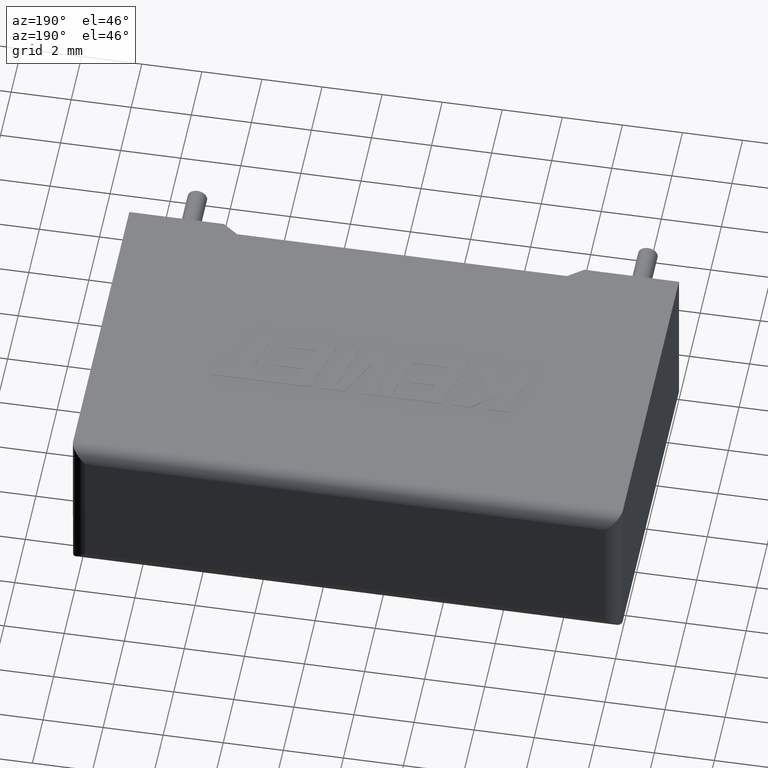
[diagram: clean part render]
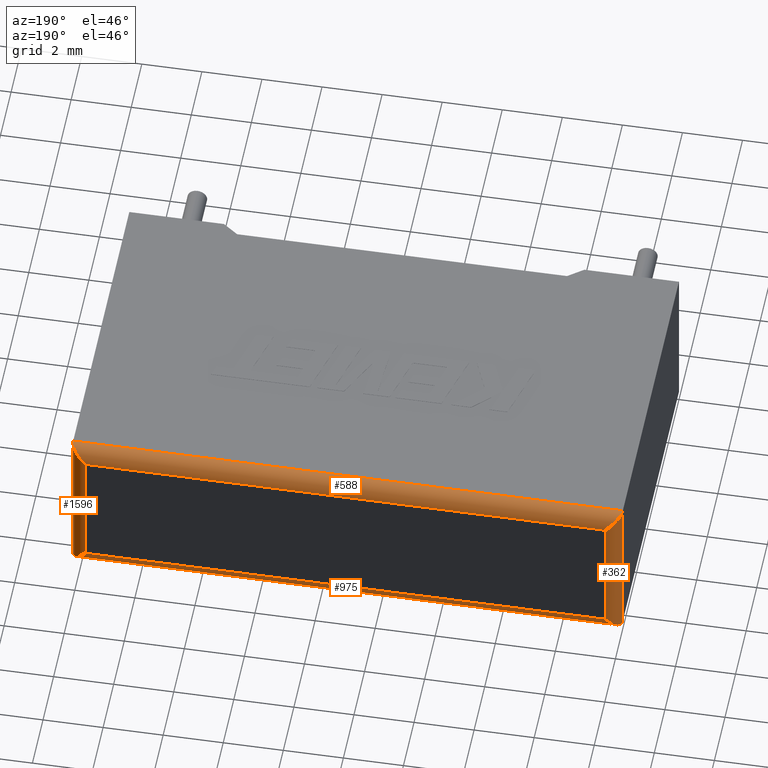
[diagram: same view with one multi-face feature highlighted, each face labeled with its STEP entity id]
A machine part, auxiliary view. The highlighted faces form ONE feature: a constant-radius fillet chain: 4 tangent blend faces with common blend radius 0.5 mm. The faces share edges in the B-rep.
Their STEP definitions:
[1] entity #588 (Cylinder):
#88 = EDGE_LOOP ( 'NONE', ( #2195, #1679, #1518, #2441 ) ) ;
#155 = CARTESIAN_POINT ( 'NONE',  ( 0.5000000000000000000, 11.09999999999999964, 4.699999999999999289 ) ) ;
#165 = CARTESIAN_POINT ( 'NONE',  ( 0.5000000000000000000, 11.09999999999999964, 4.699999999999999289 ) ) ;
#184 = VERTEX_POINT ( 'NONE', #2795 ) ;
#366 = EDGE_CURVE ( 'NONE', #3020, #2606, #1364, .T. ) ;
#385 = DIRECTION ( 'NONE',  ( -1.000000000000000000, 0.000000000000000000, 0.000000000000000000 ) ) ;
#588 = ADVANCED_FACE ( 'NONE', ( #1303 ), #1078, .T. ) ;
#606 = DIRECTION ( 'NONE',  ( 0.000000000000000000, 0.000000000000000000, 1.000000000000000000 ) ) ;
#627 = LINE ( 'NONE', #686, #1016 ) ;
#636 =( BOUNDED_CURVE ( )  B_SPLINE_CURVE ( 3, ( #1380, #1122, #1617, #1106 ),
 .UNSPECIFIED., .F., .T. ) 
 B_SPLINE_CURVE_WITH_KNOTS ( ( 4, 4 ),
 ( 3.141592653589793116, 4.712388980384689674 ),
 .UNSPECIFIED. ) 
 CURVE ( )  GEOMETRIC_REPRESENTATION_ITEM ( )  RATIONAL_B_SPLINE_CURVE ( ( 1.000000000000000000, 0.8047378541243649375, 0.8047378541243649375, 1.000000000000000000 ) ) 
 REPRESENTATION_ITEM ( '' )  );
#652 = EDGE_CURVE ( 'NONE', #184, #2022, #636, .T. ) ;
#686 = CARTESIAN_POINT ( 'NONE',  ( 0.000000000000000000, 11.09999999999999964, 4.699999999999999289 ) ) ;
#844 = DIRECTION ( 'NONE',  ( -1.000000000000000000, 0.000000000000000000, 0.000000000000000000 ) ) ;
#892 = CARTESIAN_POINT ( 'NONE',  ( 0.000000000000000000, 10.59999999999999964, 5.200000000000000178 ) ) ;
#1016 = VECTOR ( 'NONE', #2055, 1000.000000000000000 ) ;
#1078 = CYLINDRICAL_SURFACE ( 'NONE', #1809, 0.5000000000000004441 ) ;
#1106 = CARTESIAN_POINT ( 'NONE',  ( 17.80000000000000071, 11.09999999999999964, 4.699999999999999289 ) ) ;
#1122 = CARTESIAN_POINT ( 'NONE',  ( 18.30000000000000071, 10.89289321881345174, 5.199999999999998401 ) ) ;
#1171 = CARTESIAN_POINT ( 'NONE',  ( 0.000000000000000000, 10.59999999999999964, 5.200000000000000178 ) ) ;
#1303 = FACE_OUTER_BOUND ( 'NONE', #88, .T. ) ;
#1364 =( BOUNDED_CURVE ( )  B_SPLINE_CURVE ( 3, ( #892, #1832, #2755, #155 ),
 .UNSPECIFIED., .F., .T. ) 
 B_SPLINE_CURVE_WITH_KNOTS ( ( 4, 4 ),
 ( 0.000000000000000000, 1.570796326794896558 ),
 .UNSPECIFIED. ) 
 CURVE ( )  GEOMETRIC_REPRESENTATION_ITEM ( )  RATIONAL_B_SPLINE_CURVE ( ( 1.000000000000000000, 0.8047378541243649375, 0.8047378541243649375, 1.000000000000000000 ) ) 
 REPRESENTATION_ITEM ( '' )  );
#1380 = CARTESIAN_POINT ( 'NONE',  ( 18.30000000000000071, 10.59999999999999964, 5.200000000000000178 ) ) ;
#1518 = ORIENTED_EDGE ( 'NONE', *, *, #366, .F. ) ;
#1614 = VECTOR ( 'NONE', #385, 1000.000000000000000 ) ;
#1617 = CARTESIAN_POINT ( 'NONE',  ( 18.09289321881345103, 11.10000000000000142, 4.992893218813451384 ) ) ;
#1634 = EDGE_CURVE ( 'NONE', #2606, #2022, #627, .T. ) ;
#1679 = ORIENTED_EDGE ( 'NONE', *, *, #1634, .F. ) ;
#1809 = AXIS2_PLACEMENT_3D ( 'NONE', #2188, #844, #606 ) ;
#1832 = CARTESIAN_POINT ( 'NONE',  ( 1.084202172485504434E-16, 10.89289321881345174, 5.199999999999998401 ) ) ;
#2022 = VERTEX_POINT ( 'NONE', #2766 ) ;
#2055 = DIRECTION ( 'NONE',  ( 1.000000000000000000, -0.000000000000000000, -0.000000000000000000 ) ) ;
#2188 = CARTESIAN_POINT ( 'NONE',  ( 0.000000000000000000, 10.59999999999999964, 4.699999999999999289 ) ) ;
#2195 = ORIENTED_EDGE ( 'NONE', *, *, #652, .T. ) ;
#2279 = LINE ( 'NONE', #2731, #1614 ) ;
#2326 = EDGE_CURVE ( 'NONE', #184, #3020, #2279, .T. ) ;
#2441 = ORIENTED_EDGE ( 'NONE', *, *, #2326, .F. ) ;
#2606 = VERTEX_POINT ( 'NONE', #165 ) ;
#2731 = CARTESIAN_POINT ( 'NONE',  ( 0.000000000000000000, 10.59999999999999964, 5.200000000000000178 ) ) ;
#2755 = CARTESIAN_POINT ( 'NONE',  ( 0.2071067811865475727, 11.10000000000000142, 4.992893218813451384 ) ) ;
#2766 = CARTESIAN_POINT ( 'NONE',  ( 17.80000000000000071, 11.09999999999999964, 4.699999999999999289 ) ) ;
#2795 = CARTESIAN_POINT ( 'NONE',  ( 18.30000000000000071, 10.59999999999999964, 5.200000000000000178 ) ) ;
#3020 = VERTEX_POINT ( 'NONE', #1171 ) ;
[2] entity #362 (Cylinder):
#20 = AXIS2_PLACEMENT_3D ( 'NONE', #1335, #439, #2053 ) ;
#47 = EDGE_LOOP ( 'NONE', ( #2423, #1143, #1137, #181 ) ) ;
#155 = CARTESIAN_POINT ( 'NONE',  ( 0.5000000000000000000, 11.09999999999999964, 4.699999999999999289 ) ) ;
#165 = CARTESIAN_POINT ( 'NONE',  ( 0.5000000000000000000, 11.09999999999999964, 4.699999999999999289 ) ) ;
#181 = ORIENTED_EDGE ( 'NONE', *, *, #992, .F. ) ;
#237 = CARTESIAN_POINT ( 'NONE',  ( 1.442892915397364602E-16, 10.89289321881345174, 5.779701605339383077E-16 ) ) ;
#362 = ADVANCED_FACE ( 'NONE', ( #2507 ), #2540, .T. ) ;
#366 = EDGE_CURVE ( 'NONE', #3020, #2606, #1364, .T. ) ;
#411 = VERTEX_POINT ( 'NONE', #1185 ) ;
#439 = DIRECTION ( 'NONE',  ( 0.000000000000000000, 0.000000000000000000, -1.000000000000000000 ) ) ;
#484 = EDGE_CURVE ( 'NONE', #411, #2606, #2894, .T. ) ;
#491 = DIRECTION ( 'NONE',  ( -0.000000000000000000, -0.000000000000000000, 1.000000000000000000 ) ) ;
#574 = DIRECTION ( 'NONE',  ( 0.000000000000000000, 0.000000000000000000, -1.000000000000000000 ) ) ;
#646 = CARTESIAN_POINT ( 'NONE',  ( 0.2071067811865475172, 11.09999999999999609, 0.2071067811865479058 ) ) ;
#720 = VECTOR ( 'NONE', #574, 1000.000000000000000 ) ;
#781 = CARTESIAN_POINT ( 'NONE',  ( 0.5000000000000000000, 11.09999999999999964, 5.200000000000000178 ) ) ;
#803 = CARTESIAN_POINT ( 'NONE',  ( 0.000000000000000000, 10.59999999999999964, 5.200000000000000178 ) ) ;
#892 = CARTESIAN_POINT ( 'NONE',  ( 0.000000000000000000, 10.59999999999999964, 5.200000000000000178 ) ) ;
#992 = EDGE_CURVE ( 'NONE', #3020, #1505, #1038, .T. ) ;
#1038 = LINE ( 'NONE', #803, #720 ) ;
#1137 = ORIENTED_EDGE ( 'NONE', *, *, #1397, .T. ) ;
#1143 = ORIENTED_EDGE ( 'NONE', *, *, #484, .F. ) ;
#1171 = CARTESIAN_POINT ( 'NONE',  ( 0.000000000000000000, 10.59999999999999964, 5.200000000000000178 ) ) ;
#1185 = CARTESIAN_POINT ( 'NONE',  ( 0.5000000000000000000, 11.09999999999999964, 0.5000000000000004441 ) ) ;
#1335 = CARTESIAN_POINT ( 'NONE',  ( 0.5000000000000000000, 10.59999999999999964, 5.200000000000000178 ) ) ;
#1364 =( BOUNDED_CURVE ( )  B_SPLINE_CURVE ( 3, ( #892, #1832, #2755, #155 ),
 .UNSPECIFIED., .F., .T. ) 
 B_SPLINE_CURVE_WITH_KNOTS ( ( 4, 4 ),
 ( 0.000000000000000000, 1.570796326794896558 ),
 .UNSPECIFIED. ) 
 CURVE ( )  GEOMETRIC_REPRESENTATION_ITEM ( )  RATIONAL_B_SPLINE_CURVE ( ( 1.000000000000000000, 0.8047378541243649375, 0.8047378541243649375, 1.000000000000000000 ) ) 
 REPRESENTATION_ITEM ( '' )  );
#1397 = EDGE_CURVE ( 'NONE', #411, #1505, #2325, .T. ) ;
#1505 = VERTEX_POINT ( 'NONE', #2414 ) ;
#1832 = CARTESIAN_POINT ( 'NONE',  ( 1.084202172485504434E-16, 10.89289321881345174, 5.199999999999998401 ) ) ;
#1947 = VECTOR ( 'NONE', #491, 1000.000000000000000 ) ;
#2053 = DIRECTION ( 'NONE',  ( -1.000000000000000000, 0.000000000000000000, 0.000000000000000000 ) ) ;
#2083 = CARTESIAN_POINT ( 'NONE',  ( 0.000000000000000000, 10.59999999999999964, 0.000000000000000000 ) ) ;
#2325 =( BOUNDED_CURVE ( )  B_SPLINE_CURVE ( 3, ( #3046, #646, #237, #2083 ),
 .UNSPECIFIED., .F., .T. ) 
 B_SPLINE_CURVE_WITH_KNOTS ( ( 4, 4 ),
 ( 1.570796326794896780, 3.141592653589793116 ),
 .UNSPECIFIED. ) 
 CURVE ( )  GEOMETRIC_REPRESENTATION_ITEM ( )  RATIONAL_B_SPLINE_CURVE ( ( 1.000000000000000000, 0.8047378541243650485, 0.8047378541243650485, 1.000000000000000000 ) ) 
 REPRESENTATION_ITEM ( '' )  );
#2414 = CARTESIAN_POINT ( 'NONE',  ( 0.000000000000000000, 10.59999999999999964, 0.000000000000000000 ) ) ;
#2423 = ORIENTED_EDGE ( 'NONE', *, *, #366, .T. ) ;
#2507 = FACE_OUTER_BOUND ( 'NONE', #47, .T. ) ;
#2540 = CYLINDRICAL_SURFACE ( 'NONE', #20, 0.5000000000000000000 ) ;
#2606 = VERTEX_POINT ( 'NONE', #165 ) ;
#2755 = CARTESIAN_POINT ( 'NONE',  ( 0.2071067811865475727, 11.10000000000000142, 4.992893218813451384 ) ) ;
#2894 = LINE ( 'NONE', #781, #1947 ) ;
#3020 = VERTEX_POINT ( 'NONE', #1171 ) ;
#3046 = CARTESIAN_POINT ( 'NONE',  ( 0.5000000000000000000, 11.09999999999999964, 0.5000000000000004441 ) ) ;
[3] entity #975 (Cylinder):
#93 = EDGE_CURVE ( 'NONE', #2993, #411, #2074, .T. ) ;
#94 = EDGE_LOOP ( 'NONE', ( #2754, #2851, #2730, #1317 ) ) ;
#148 = CARTESIAN_POINT ( 'NONE',  ( 18.30000000000000071, 10.59999999999999964, 0.000000000000000000 ) ) ;
#237 = CARTESIAN_POINT ( 'NONE',  ( 1.442892915397364602E-16, 10.89289321881345174, 5.779701605339383077E-16 ) ) ;
#238 = CARTESIAN_POINT ( 'NONE',  ( 18.30000000000000071, 10.59999999999999964, 0.000000000000000000 ) ) ;
#297 = FACE_OUTER_BOUND ( 'NONE', #94, .T. ) ;
#411 = VERTEX_POINT ( 'NONE', #1185 ) ;
#425 = CARTESIAN_POINT ( 'NONE',  ( 18.30000000000000071, 10.59999999999999964, 0.000000000000000000 ) ) ;
#497 = EDGE_CURVE ( 'NONE', #2993, #745, #1269, .T. ) ;
#544 = DIRECTION ( 'NONE',  ( 0.000000000000000000, 0.000000000000000000, -1.000000000000000000 ) ) ;
#549 = CARTESIAN_POINT ( 'NONE',  ( 18.09289321881345103, 11.10000000000000142, 0.2071067811865480723 ) ) ;
#646 = CARTESIAN_POINT ( 'NONE',  ( 0.2071067811865475172, 11.09999999999999609, 0.2071067811865479058 ) ) ;
#681 = VECTOR ( 'NONE', #2910, 1000.000000000000000 ) ;
#745 = VERTEX_POINT ( 'NONE', #425 ) ;
#975 = ADVANCED_FACE ( 'NONE', ( #297 ), #2097, .T. ) ;
#1140 = DIRECTION ( 'NONE',  ( -1.000000000000000000, 0.000000000000000000, 0.000000000000000000 ) ) ;
#1185 = CARTESIAN_POINT ( 'NONE',  ( 0.5000000000000000000, 11.09999999999999964, 0.5000000000000004441 ) ) ;
#1269 =( BOUNDED_CURVE ( )  B_SPLINE_CURVE ( 3, ( #2645, #549, #2339, #238 ),
 .UNSPECIFIED., .F., .T. ) 
 B_SPLINE_CURVE_WITH_KNOTS ( ( 4, 4 ),
 ( 4.712388980384689674, 6.283185307179586232 ),
 .UNSPECIFIED. ) 
 CURVE ( )  GEOMETRIC_REPRESENTATION_ITEM ( )  RATIONAL_B_SPLINE_CURVE ( ( 1.000000000000000000, 0.8047378541243649375, 0.8047378541243649375, 1.000000000000000000 ) ) 
 REPRESENTATION_ITEM ( '' )  );
#1289 = DIRECTION ( 'NONE',  ( 1.000000000000000000, 0.000000000000000000, 0.000000000000000000 ) ) ;
#1317 = ORIENTED_EDGE ( 'NONE', *, *, #93, .F. ) ;
#1384 = CARTESIAN_POINT ( 'NONE',  ( 0.000000000000000000, 11.09999999999999964, 0.5000000000000004441 ) ) ;
#1397 = EDGE_CURVE ( 'NONE', #411, #1505, #2325, .T. ) ;
#1505 = VERTEX_POINT ( 'NONE', #2414 ) ;
#1748 = CARTESIAN_POINT ( 'NONE',  ( 0.000000000000000000, 10.59999999999999964, 0.5000000000000004441 ) ) ;
#1897 = VECTOR ( 'NONE', #1140, 1000.000000000000000 ) ;
#2046 = CARTESIAN_POINT ( 'NONE',  ( 17.80000000000000071, 11.09999999999999964, 0.5000000000000004441 ) ) ;
#2074 = LINE ( 'NONE', #1384, #1897 ) ;
#2083 = CARTESIAN_POINT ( 'NONE',  ( 0.000000000000000000, 10.59999999999999964, 0.000000000000000000 ) ) ;
#2097 = CYLINDRICAL_SURFACE ( 'NONE', #2664, 0.5000000000000000000 ) ;
#2254 = LINE ( 'NONE', #148, #681 ) ;
#2325 =( BOUNDED_CURVE ( )  B_SPLINE_CURVE ( 3, ( #3046, #646, #237, #2083 ),
 .UNSPECIFIED., .F., .T. ) 
 B_SPLINE_CURVE_WITH_KNOTS ( ( 4, 4 ),
 ( 1.570796326794896780, 3.141592653589793116 ),
 .UNSPECIFIED. ) 
 CURVE ( )  GEOMETRIC_REPRESENTATION_ITEM ( )  RATIONAL_B_SPLINE_CURVE ( ( 1.000000000000000000, 0.8047378541243650485, 0.8047378541243650485, 1.000000000000000000 ) ) 
 REPRESENTATION_ITEM ( '' )  );
#2339 = CARTESIAN_POINT ( 'NONE',  ( 18.30000000000000071, 10.89289321881345174, 5.421010862427522170E-16 ) ) ;
#2414 = CARTESIAN_POINT ( 'NONE',  ( 0.000000000000000000, 10.59999999999999964, 0.000000000000000000 ) ) ;
#2645 = CARTESIAN_POINT ( 'NONE',  ( 17.80000000000000071, 11.09999999999999964, 0.5000000000000004441 ) ) ;
#2664 = AXIS2_PLACEMENT_3D ( 'NONE', #1748, #1289, #544 ) ;
#2730 = ORIENTED_EDGE ( 'NONE', *, *, #1397, .F. ) ;
#2754 = ORIENTED_EDGE ( 'NONE', *, *, #497, .T. ) ;
#2851 = ORIENTED_EDGE ( 'NONE', *, *, #2905, .F. ) ;
#2905 = EDGE_CURVE ( 'NONE', #1505, #745, #2254, .T. ) ;
#2910 = DIRECTION ( 'NONE',  ( 1.000000000000000000, -0.000000000000000000, -0.000000000000000000 ) ) ;
#2993 = VERTEX_POINT ( 'NONE', #2046 ) ;
#3046 = CARTESIAN_POINT ( 'NONE',  ( 0.5000000000000000000, 11.09999999999999964, 0.5000000000000004441 ) ) ;
[4] entity #1596 (Cylinder):
#82 = CARTESIAN_POINT ( 'NONE',  ( 17.80000000000000071, 10.59999999999999964, 5.200000000000000178 ) ) ;
#92 = FACE_OUTER_BOUND ( 'NONE', #1751, .T. ) ;
#116 = VECTOR ( 'NONE', #2579, 1000.000000000000000 ) ;
#184 = VERTEX_POINT ( 'NONE', #2795 ) ;
#238 = CARTESIAN_POINT ( 'NONE',  ( 18.30000000000000071, 10.59999999999999964, 0.000000000000000000 ) ) ;
#336 = DIRECTION ( 'NONE',  ( 0.000000000000000000, 0.000000000000000000, -1.000000000000000000 ) ) ;
#425 = CARTESIAN_POINT ( 'NONE',  ( 18.30000000000000071, 10.59999999999999964, 0.000000000000000000 ) ) ;
#497 = EDGE_CURVE ( 'NONE', #2993, #745, #1269, .T. ) ;
#516 = AXIS2_PLACEMENT_3D ( 'NONE', #82, #336, #1055 ) ;
#549 = CARTESIAN_POINT ( 'NONE',  ( 18.09289321881345103, 11.10000000000000142, 0.2071067811865480723 ) ) ;
#553 = ORIENTED_EDGE ( 'NONE', *, *, #1826, .F. ) ;
#595 = CYLINDRICAL_SURFACE ( 'NONE', #516, 0.5000000000000004441 ) ;
#636 =( BOUNDED_CURVE ( )  B_SPLINE_CURVE ( 3, ( #1380, #1122, #1617, #1106 ),
 .UNSPECIFIED., .F., .T. ) 
 B_SPLINE_CURVE_WITH_KNOTS ( ( 4, 4 ),
 ( 3.141592653589793116, 4.712388980384689674 ),
 .UNSPECIFIED. ) 
 CURVE ( )  GEOMETRIC_REPRESENTATION_ITEM ( )  RATIONAL_B_SPLINE_CURVE ( ( 1.000000000000000000, 0.8047378541243649375, 0.8047378541243649375, 1.000000000000000000 ) ) 
 REPRESENTATION_ITEM ( '' )  );
#652 = EDGE_CURVE ( 'NONE', #184, #2022, #636, .T. ) ;
#695 = ORIENTED_EDGE ( 'NONE', *, *, #652, .F. ) ;
#713 = CARTESIAN_POINT ( 'NONE',  ( 17.80000000000000071, 11.09999999999999964, 5.200000000000000178 ) ) ;
#745 = VERTEX_POINT ( 'NONE', #425 ) ;
#1055 = DIRECTION ( 'NONE',  ( -1.000000000000000000, 0.000000000000000000, 0.000000000000000000 ) ) ;
#1106 = CARTESIAN_POINT ( 'NONE',  ( 17.80000000000000071, 11.09999999999999964, 4.699999999999999289 ) ) ;
#1122 = CARTESIAN_POINT ( 'NONE',  ( 18.30000000000000071, 10.89289321881345174, 5.199999999999998401 ) ) ;
#1191 = EDGE_CURVE ( 'NONE', #745, #184, #2941, .T. ) ;
#1242 = LINE ( 'NONE', #713, #116 ) ;
#1259 = VECTOR ( 'NONE', #2437, 1000.000000000000000 ) ;
#1269 =( BOUNDED_CURVE ( )  B_SPLINE_CURVE ( 3, ( #2645, #549, #2339, #238 ),
 .UNSPECIFIED., .F., .T. ) 
 B_SPLINE_CURVE_WITH_KNOTS ( ( 4, 4 ),
 ( 4.712388980384689674, 6.283185307179586232 ),
 .UNSPECIFIED. ) 
 CURVE ( )  GEOMETRIC_REPRESENTATION_ITEM ( )  RATIONAL_B_SPLINE_CURVE ( ( 1.000000000000000000, 0.8047378541243649375, 0.8047378541243649375, 1.000000000000000000 ) ) 
 REPRESENTATION_ITEM ( '' )  );
#1380 = CARTESIAN_POINT ( 'NONE',  ( 18.30000000000000071, 10.59999999999999964, 5.200000000000000178 ) ) ;
#1596 = ADVANCED_FACE ( 'NONE', ( #92 ), #595, .T. ) ;
#1617 = CARTESIAN_POINT ( 'NONE',  ( 18.09289321881345103, 11.10000000000000142, 4.992893218813451384 ) ) ;
#1751 = EDGE_LOOP ( 'NONE', ( #2123, #553, #695, #3044 ) ) ;
#1826 = EDGE_CURVE ( 'NONE', #2022, #2993, #1242, .T. ) ;
#2022 = VERTEX_POINT ( 'NONE', #2766 ) ;
#2046 = CARTESIAN_POINT ( 'NONE',  ( 17.80000000000000071, 11.09999999999999964, 0.5000000000000004441 ) ) ;
#2123 = ORIENTED_EDGE ( 'NONE', *, *, #497, .F. ) ;
#2339 = CARTESIAN_POINT ( 'NONE',  ( 18.30000000000000071, 10.89289321881345174, 5.421010862427522170E-16 ) ) ;
#2437 = DIRECTION ( 'NONE',  ( -0.000000000000000000, -0.000000000000000000, 1.000000000000000000 ) ) ;
#2450 = CARTESIAN_POINT ( 'NONE',  ( 18.30000000000000071, 10.59999999999999964, 5.200000000000000178 ) ) ;
#2579 = DIRECTION ( 'NONE',  ( 0.000000000000000000, 0.000000000000000000, -1.000000000000000000 ) ) ;
#2645 = CARTESIAN_POINT ( 'NONE',  ( 17.80000000000000071, 11.09999999999999964, 0.5000000000000004441 ) ) ;
#2766 = CARTESIAN_POINT ( 'NONE',  ( 17.80000000000000071, 11.09999999999999964, 4.699999999999999289 ) ) ;
#2795 = CARTESIAN_POINT ( 'NONE',  ( 18.30000000000000071, 10.59999999999999964, 5.200000000000000178 ) ) ;
#2941 = LINE ( 'NONE', #2450, #1259 ) ;
#2993 = VERTEX_POINT ( 'NONE', #2046 ) ;
#3044 = ORIENTED_EDGE ( 'NONE', *, *, #1191, .F. ) ;